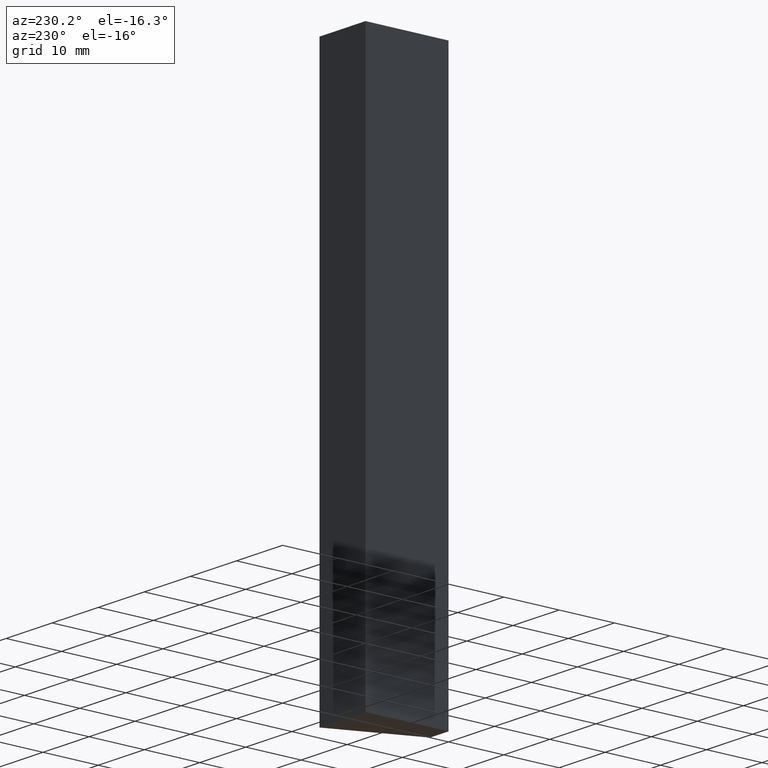
[diagram: clean part render]
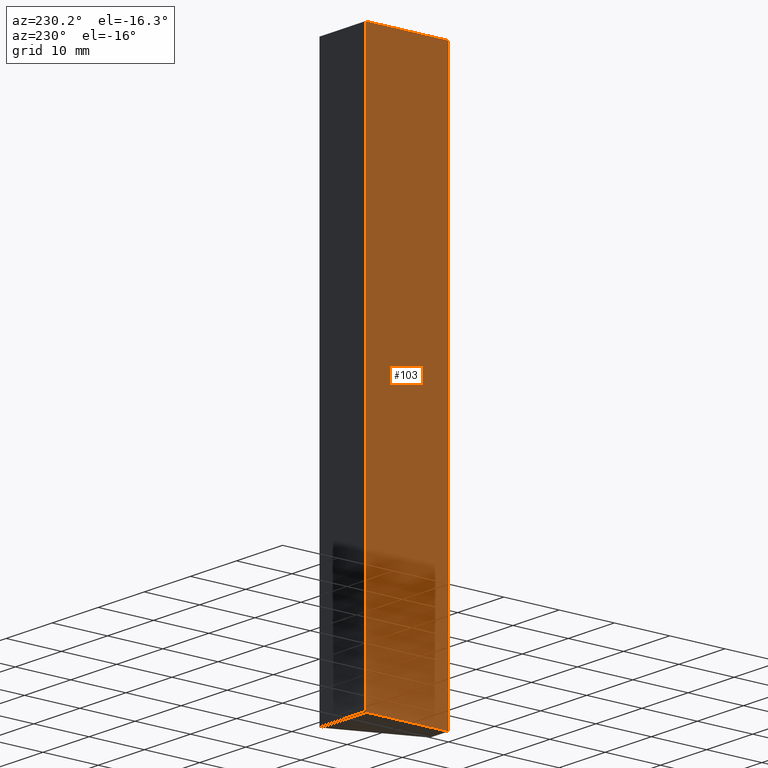
[diagram: same view with one face highlighted and labeled with its STEP entity id]
A machine part, auxiliary view. The second image highlights one B-rep face of the part: STEP entity #103.
In plain terms, the highlighted planar face has unit normal (-1, -0, 0).
Its self-contained STEP definition (entity closure, byte-faithful):
#17=FACE_OUTER_BOUND('',#23,.T.);
#23=EDGE_LOOP('',(#76,#77,#78,#79));
#30=LINE('',#168,#42);
#32=LINE('',#173,#44);
#33=LINE('',#174,#45);
#34=LINE('',#175,#46);
#42=VECTOR('',#140,10.);
#44=VECTOR('',#144,10.);
#45=VECTOR('',#145,10.);
#46=VECTOR('',#146,10.);
#54=VERTEX_POINT('',#165);
#55=VERTEX_POINT('',#167);
#56=VERTEX_POINT('',#171);
#57=VERTEX_POINT('',#172);
#62=EDGE_CURVE('',#55,#54,#30,.T.);
#64=EDGE_CURVE('',#56,#57,#32,.T.);
#65=EDGE_CURVE('',#57,#55,#33,.T.);
#66=EDGE_CURVE('',#56,#54,#34,.T.);
#76=ORIENTED_EDGE('',*,*,#64,.T.);
#77=ORIENTED_EDGE('',*,*,#65,.T.);
#78=ORIENTED_EDGE('',*,*,#62,.T.);
#79=ORIENTED_EDGE('',*,*,#66,.F.);
#97=PLANE('',#129);
#103=ADVANCED_FACE('',(#17),#97,.T.);
#129=AXIS2_PLACEMENT_3D('',#170,#142,#143);
#140=DIRECTION('',(2.03540887847945E-16,-1.,0.));
#142=DIRECTION('center_axis',(-1.,-2.03540887847945E-16,0.));
#143=DIRECTION('ref_axis',(0.,0.,1.));
#144=DIRECTION('',(-2.03540887847945E-16,1.,0.));
#145=DIRECTION('',(0.,0.,-1.));
#146=DIRECTION('',(0.,0.,-1.));
#165=CARTESIAN_POINT('',(2.22044604925031E-15,-2.22044604925031E-15,-50.));
#167=CARTESIAN_POINT('',(-8.32667268468867E-16,15.,-50.));
#168=CARTESIAN_POINT('',(2.22044604925031E-15,-2.22044604925031E-15,-50.));
#170=CARTESIAN_POINT('Origin',(2.22044604925031E-15,-2.22044604925031E-15,
0.));
#171=CARTESIAN_POINT('',(2.22044604925031E-15,-2.22044604925031E-15,50.));
#172=CARTESIAN_POINT('',(-8.32667268468867E-16,15.,50.));
#173=CARTESIAN_POINT('',(2.22044604925031E-15,-2.22044604925031E-15,50.));
#174=CARTESIAN_POINT('',(-8.32667268468867E-16,15.,0.));
#175=CARTESIAN_POINT('',(2.22044604925031E-15,-2.22044604925031E-15,0.));